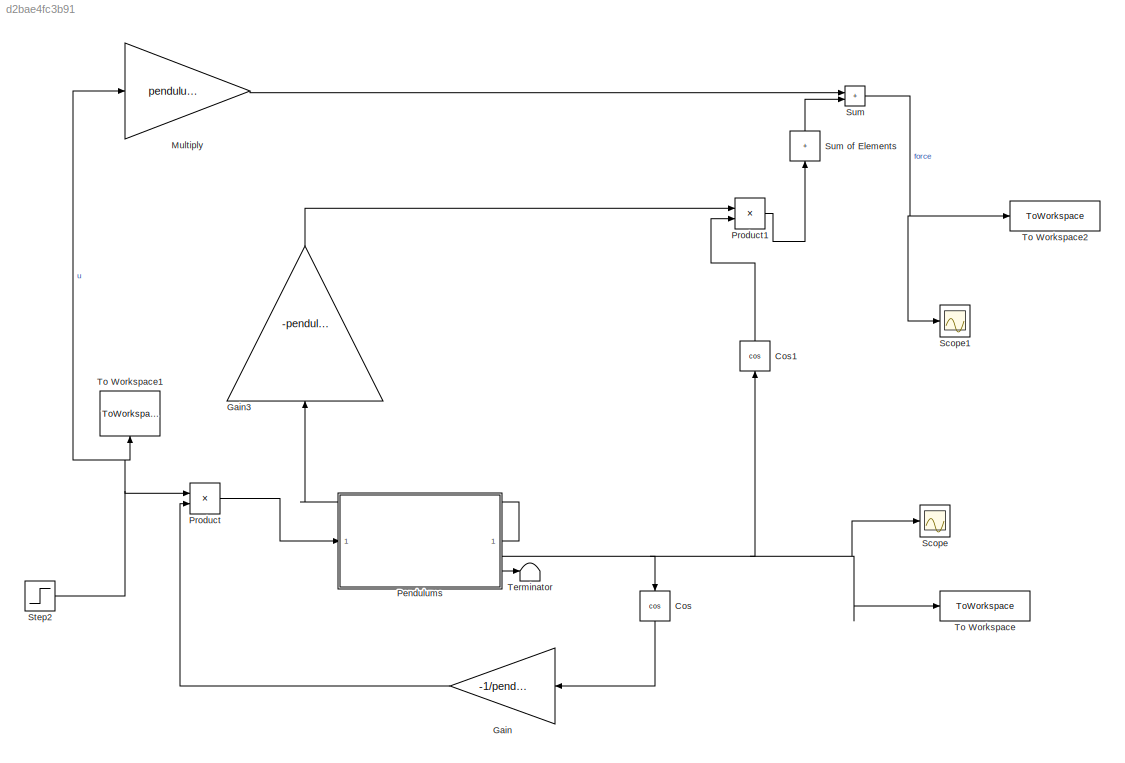
MODEL slx_d2bae4fc3b91
KIND model
CONFIG AbsTol = auto
CONFIG EnableMultiTasking = off
CONFIG FixedStep = 0.01
CONFIG MaxStep = auto
CONFIG MinStep = auto
CONFIG RelTol = 1e-3
CONFIG SampleTimeConstraint = Unconstrained
CONFIG SolverName = ode4
CONFIG StartTime = 0.0
CONFIG StopTime = 100
BLOCK [Trigonometry] Cos
  NameLocation = left
  Operator = cos
BLOCK [Trigonometry] Cos1
  NameLocation = right
  Operator = cos
BLOCK [Gain] Gain
  Gain = -1/pendulums.L
  NameLocation = top
BLOCK [Gain] Gain3
  Gain = -pendulums.m.*pendulums.L
  NameLocation = right
BLOCK [Gain] Multiply
  Gain = pendulums.m0
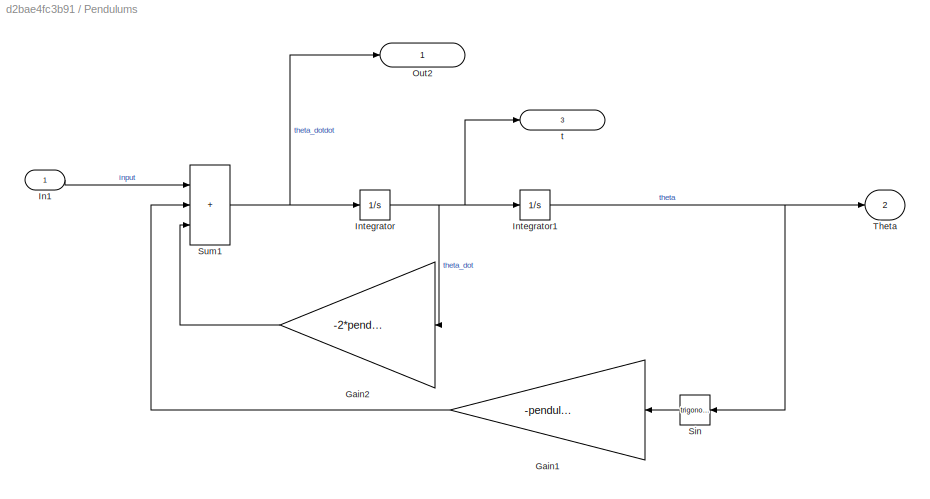
BLOCK [SubSystem] Pendulums
BLOCK [Gain] Pendulums/Gain1
  Gain = -pendulums.w_n.^2
  NameLocation = top
BLOCK [Gain] Pendulums/Gain2
  Gain = -2*pendulums.w_n*damping
  NameLocation = top
BLOCK [Inport] Pendulums/In1
  IconDisplay = Signal name
BLOCK [Integrator] Pendulums/Integrator
BLOCK [Integrator] Pendulums/Integrator1
BLOCK [Outport] Pendulums/Out2
  IconDisplay = Signal name
BLOCK [Trigonometry] Pendulums/Sin
  NameLocation = top
BLOCK [Sum] Pendulums/Sum1
  IconShape = rectangular
  Inputs = +++
BLOCK [Outport] Pendulums/Theta
  IconDisplay = Signal name
  Port = 2
BLOCK [Outport] Pendulums/t
  IconDisplay = Signal name
  Port = 3
BLOCK [Product] Product
BLOCK [Product] Product1
BLOCK [Scope] Scope
  Floating = off
  NumInputPorts = 1
  ScopeSpecificationString = Simulink.scopes.TimeScopeBlockCfg('CurrentConfiguration', extmgr.ConfigurationSet(extmgr.Configuration('Core','General UI',true),extmgr.Configuration('Core','Source UI',true),extmgr.Configuration('Sources','WiredSimulink',true,'DataLoggingVariableName','ScopeData1'),extmgr.Configuration('Visuals','Time Domain',true,'SerializedDisplays',{struct('MinYLimReal','-0.22749','MaxYLimReal','0.02528','YLab...<+1579ch>
BLOCK [Scope] Scope1
  Floating = off
  NumInputPorts = 1
  ScopeSpecificationString = Simulink.scopes.TimeScopeBlockCfg('CurrentConfiguration', extmgr.ConfigurationSet(extmgr.Configuration('Core','General UI',true),extmgr.Configuration('Core','Source UI',true),extmgr.Configuration('Sources','WiredSimulink',true,'DataLoggingVariableName','ScopeData1'),extmgr.Configuration('Visuals','Time Domain',true,'SerializedDisplays',{struct('MinYLimReal','382.92452','MaxYLimReal','822.16261','Y...<+1530ch>
BLOCK [Step] Step2
  SampleTime = 0
  Time = 0
BLOCK [Sum] Sum
  IconShape = rectangular
BLOCK [Sum] Sum of Elements
  IconShape = rectangular
  Inputs = +
  NameLocation = right
BLOCK [Terminator] Terminator
BLOCK [ToWorkspace] To Workspace
  FixptAsFi = on
  MaxDataPoints = inf
  SampleTime = -1
  VariableName = theta
BLOCK [ToWorkspace] To Workspace1
  FixptAsFi = on
  MaxDataPoints = inf
  NameLocation = right
  SampleTime = -1
  VariableName = u
BLOCK [ToWorkspace] To Workspace2
  FixptAsFi = on
  MaxDataPoints = inf
  SampleTime = -1
  Save2DSignal = 2-D array (concatenate along first dimension)
  VariableName = force
LINE Cos1:1 -> Product1:2
LINE Cos:1 -> Gain:1
LINE Gain3:1 -> Product1:1
LINE Gain:1 -> Product:2
LINE Multiply:1 -> Sum:1
LINE Pendulums/Gain1:1 -> Pendulums/Sum1:2
LINE Pendulums/Gain2:1 -> Pendulums/Sum1:3
LINE Pendulums/In1:1 -> Pendulums/Sum1:1
NET Pendulums/Integrator1:1 -> Pendulums/Sin:1, Pendulums/Theta:1
NET Pendulums/Integrator:1 -> Pendulums/Gain2:1, Pendulums/Integrator1:1, Pendulums/t:1
LINE Pendulums/Sin:1 -> Pendulums/Gain1:1
NET Pendulums/Sum1:1 -> Pendulums/Integrator:1, Pendulums/Out2:1
LINE Pendulums:1 -> Gain3:1
NET Pendulums:2 -> Cos1:1, Cos:1, Scope:1, To Workspace:1
LINE Pendulums:3 -> Terminator:1
LINE Product1:1 -> Sum of Elements:1
LINE Product:1 -> Pendulums:1
NET Step2:1 -> Multiply:1, Product:1, To Workspace1:1
LINE Sum of Elements:1 -> Sum:2
NET Sum:1 -> Scope1:1, To Workspace2:1
note: NET lines group one-source signal fan-out (src -> all destinations, sorted); 1:1 wires keep LINE
